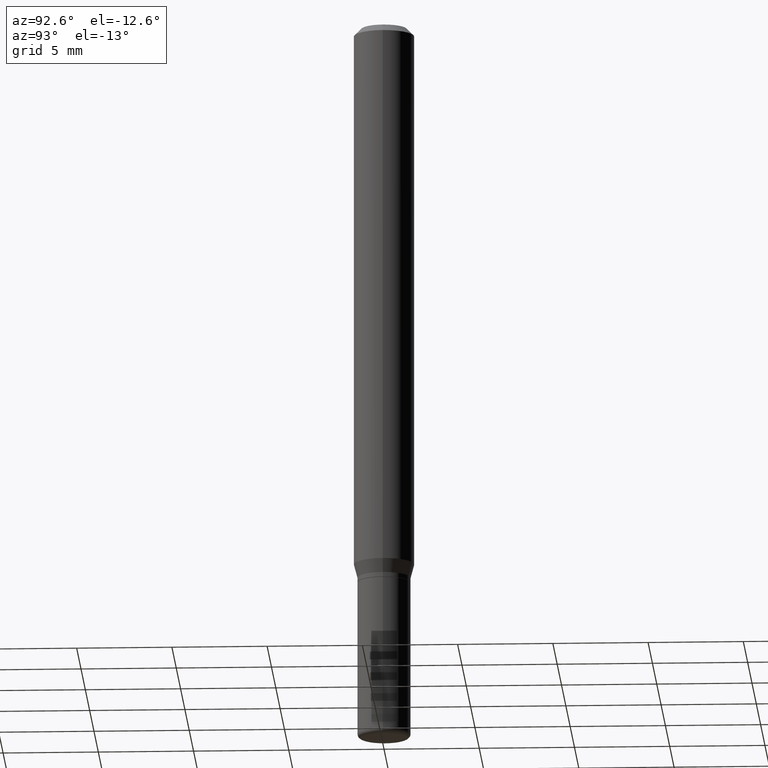
[diagram: clean part render]
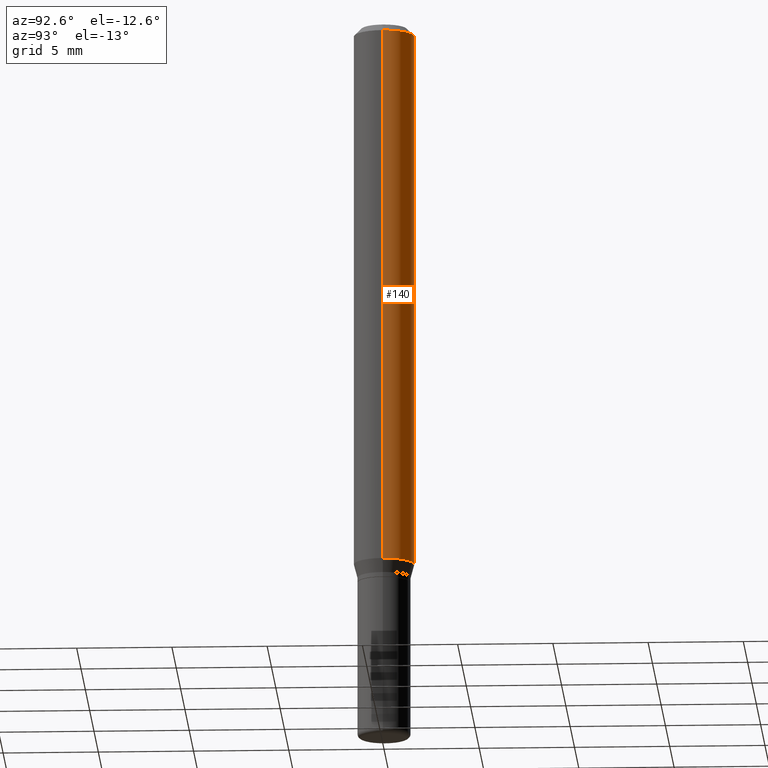
[diagram: same view with one face highlighted and labeled with its STEP entity id]
A machine part, auxiliary view. The second image highlights one B-rep face of the part: STEP entity #140.
In plain terms, the highlighted cylindrical surface (edge-blend (fillet) strip) has radius 1.5875 mm, axis along (-0, 0, 1).
Its self-contained STEP definition (entity closure, byte-faithful):
#2 = DIRECTION ( 'NONE',  ( -2.445468806185136877E-29, 3.491481338843145188E-15, 1.000000000000000000 ) ) ;
#25 = ORIENTED_EDGE ( 'NONE', *, *, #124, .T. ) ;
#36 = CARTESIAN_POINT ( 'NONE',  ( -0.06250000000000000000, -3.508301250081177341E-15, -1.132009618943233376 ) ) ;
#46 = EDGE_CURVE ( 'NONE', #402, #87, #483, .T. ) ;
#55 = DIRECTION ( 'NONE',  ( 1.000000000000000000, -6.982962677686262766E-15, 0.000000000000000000 ) ) ;
#67 = AXIS2_PLACEMENT_3D ( 'NONE', #375, #451, #263 ) ;
#73 = EDGE_CURVE ( 'NONE', #396, #226, #132, .T. ) ;
#87 = VERTEX_POINT ( 'NONE', #142 ) ;
#98 = CIRCLE ( 'NONE', #120, 0.06250000000000000000 ) ;
#111 = CARTESIAN_POINT ( 'NONE',  ( 3.668203209277632395E-31, -5.237222008264614861E-17, -0.01499999999999970281 ) ) ;
#120 = AXIS2_PLACEMENT_3D ( 'NONE', #111, #272, #422 ) ;
#124 = EDGE_CURVE ( 'NONE', #396, #402, #243, .T. ) ;
#125 = CARTESIAN_POINT ( 'NONE',  ( 0.06250000000000000000, -4.388825627286631627E-15, -1.132009618943233376 ) ) ;
#132 = LINE ( 'NONE', #213, #471 ) ;
#140 = ADVANCED_FACE ( 'NONE', ( #149 ), #335, .T. ) ;
#142 = CARTESIAN_POINT ( 'NONE',  ( -0.06250000000000000000, -1.558292130156879916E-15, -0.01499999999999970281 ) ) ;
#149 = FACE_OUTER_BOUND ( 'NONE', #186, .T. ) ;
#153 = ORIENTED_EDGE ( 'NONE', *, *, #240, .F. ) ;
#185 = CARTESIAN_POINT ( 'NONE',  ( 2.768294211427200085E-29, -3.952390459931239169E-15, -1.132009618943233376 ) ) ;
#186 = EDGE_LOOP ( 'NONE', ( #25, #257, #153, #192 ) ) ;
#192 = ORIENTED_EDGE ( 'NONE', *, *, #73, .F. ) ;
#213 = CARTESIAN_POINT ( 'NONE',  ( 0.06250000000000000000, -4.364351673553916694E-16, 3.047610484872459871E-30 ) ) ;
#226 = VERTEX_POINT ( 'NONE', #344 ) ;
#240 = EDGE_CURVE ( 'NONE', #226, #87, #98, .T. ) ;
#243 = CIRCLE ( 'NONE', #502, 0.06250000000000000000 ) ;
#250 = CARTESIAN_POINT ( 'NONE',  ( -0.06250000000000000000, 4.440892098500626162E-16, -3.074334431409316114E-30 ) ) ;
#257 = ORIENTED_EDGE ( 'NONE', *, *, #46, .T. ) ;
#263 = DIRECTION ( 'NONE',  ( 1.000000000000000000, -6.982962677686266711E-15, 4.876176775795935793E-29 ) ) ;
#272 = DIRECTION ( 'NONE',  ( -2.445468806185136597E-29, 3.491481338843145583E-15, 1.000000000000000000 ) ) ;
#335 = CYLINDRICAL_SURFACE ( 'NONE', #67, 0.06250000000000000000 ) ;
#337 = DIRECTION ( 'NONE',  ( -2.445468806185136597E-29, 3.491481338843145583E-15, 1.000000000000000000 ) ) ;
#344 = CARTESIAN_POINT ( 'NONE',  ( 0.06250000000000000000, -4.888073874380378612E-16, -0.01499999999999970281 ) ) ;
#346 = VECTOR ( 'NONE', #2, 39.37007874015748143 ) ;
#364 = DIRECTION ( 'NONE',  ( -2.445468806185136877E-29, 3.491481338843145188E-15, 1.000000000000000000 ) ) ;
#375 = CARTESIAN_POINT ( 'NONE',  ( 0.000000000000000000, 0.000000000000000000, 0.000000000000000000 ) ) ;
#396 = VERTEX_POINT ( 'NONE', #125 ) ;
#402 = VERTEX_POINT ( 'NONE', #36 ) ;
#422 = DIRECTION ( 'NONE',  ( 1.000000000000000000, -6.982962677686266711E-15, 0.000000000000000000 ) ) ;
#451 = DIRECTION ( 'NONE',  ( -2.445468806185136597E-29, 3.491481338843145583E-15, 1.000000000000000000 ) ) ;
#471 = VECTOR ( 'NONE', #364, 39.37007874015748143 ) ;
#483 = LINE ( 'NONE', #250, #346 ) ;
#502 = AXIS2_PLACEMENT_3D ( 'NONE', #185, #337, #55 ) ;